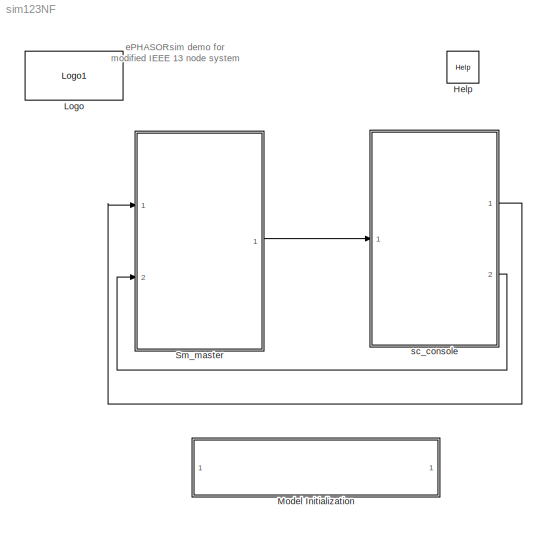
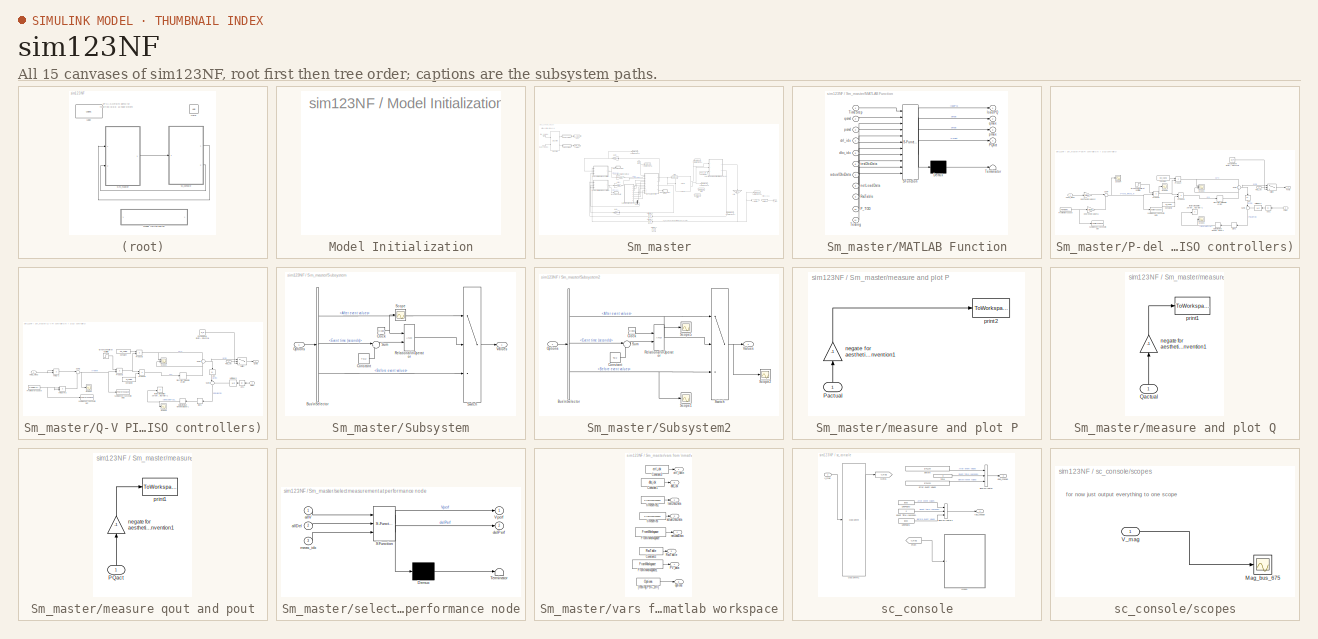
[diagram: thumbnail index - all 15 canvases of the model, root first then tree order]
MODEL sim123NF
KIND model
BLOCK [Reference] Help  REF=opal_lib/Help
  Ports = []
  SID = 1
  SourceBlock = opal_lib/Help
  SourceType = OpDoc
  docfile = ../help/ePH_IEEE13.html
BLOCK [Reference] Logo  REF=opal_lib/Logo1
  Ports = []
  SID = 2
  SourceBlock = opal_lib/Logo1
  SourceType = Opal-RT logo
  vide = []
BLOCK [SubSystem] Model Initialization
  CopyFcn = set_param(gcb,'LinkStatus','none')
  Ports = []
  RequestExecContextInheritance = off
  SID = 3
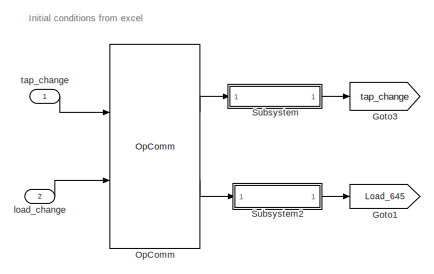
[diagram: Sm_master - part 1/5, top left region]
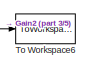
[diagram: Sm_master - part 2/5, top center region]
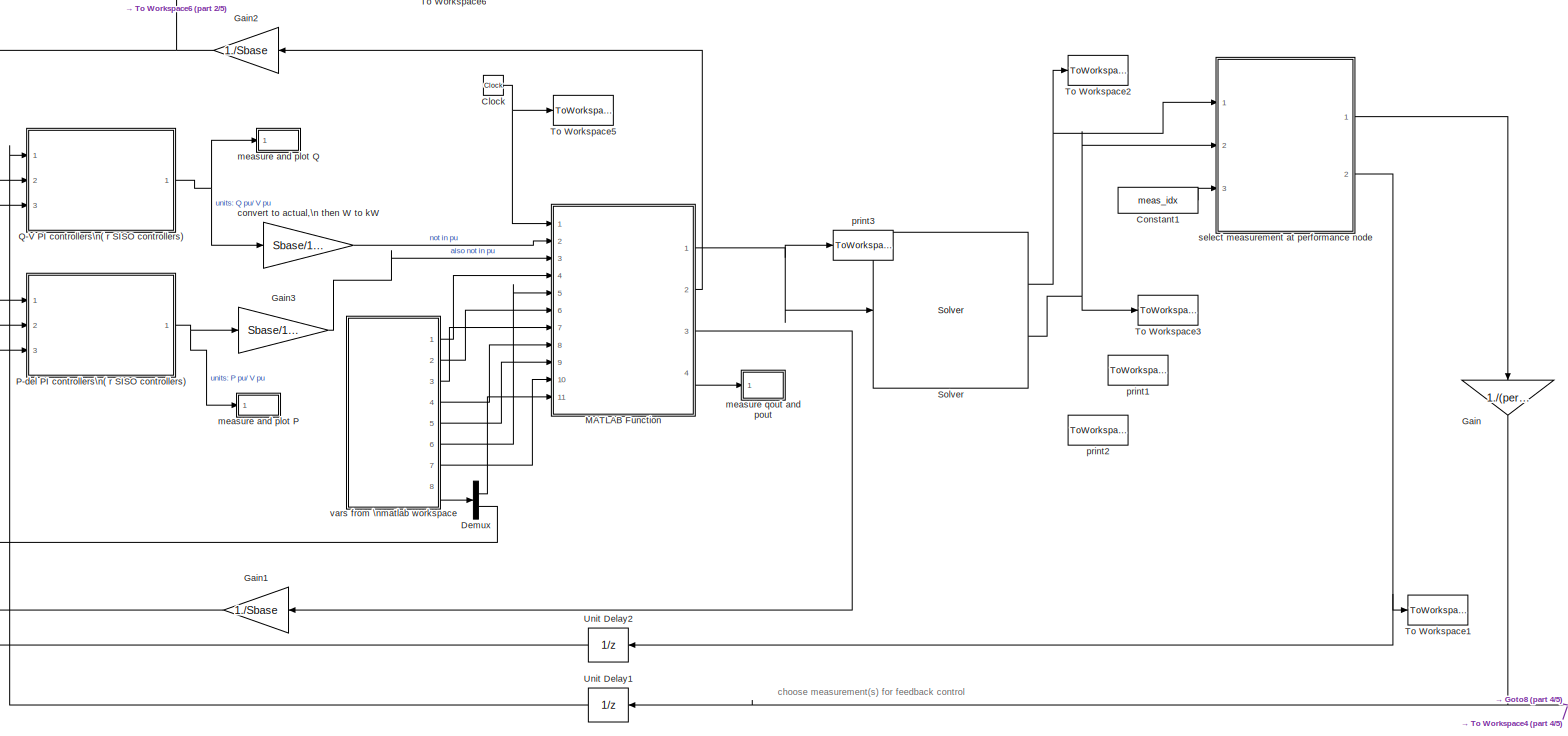
[diagram: Sm_master - part 3/5, central region]
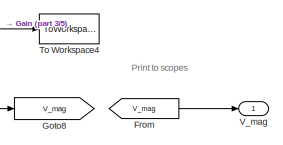
[diagram: Sm_master - part 4/5, middle right region]
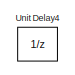
[diagram: Sm_master - part 5/5, bottom center region]
BLOCK [SubSystem] Sm_master
  Ports = [2, 1]
  RequestExecContextInheritance = off
  SID = 4
BLOCK [Clock] Sm_master/Clock
  SID = 7
BLOCK [Constant] Sm_master/Constant1
  SID = 8
  Value = meas_idx
BLOCK [Demux] Sm_master/Demux
  DisplayOption = bar
  Outputs = 2
  Ports = [1, 2]
  SID = 9
BLOCK [From] Sm_master/From
  GotoTag = V_mag
  SID = 10
BLOCK [Gain] Sm_master/Gain
  Gain = 1./(perf_Vbase)
  OutDataTypeStr = Inherit: Inherit via internal rule
  ParamDataTypeStr = Inherit: Inherit via internal rule
  SID = 11
  SaturateOnIntegerOverflow = off
BLOCK [Gain] Sm_master/Gain1
  Gain = 1./Sbase
  OutDataTypeStr = Inherit: Inherit via internal rule
  ParamDataTypeStr = Inherit: Inherit via internal rule
  SID = 12
  SaturateOnIntegerOverflow = off
BLOCK [Gain] Sm_master/Gain2
  Gain = 1./Sbase
  OutDataTypeStr = Inherit: Inherit via internal rule
  ParamDataTypeStr = Inherit: Inherit via internal rule
  SID = 13
  SaturateOnIntegerOverflow = off
BLOCK [Gain] Sm_master/Gain3
  Gain = Sbase/1000
  OutDataTypeStr = Inherit: Inherit via internal rule
  ParamDataTypeStr = Inherit: Inherit via internal rule
  SID = 14
  SaturateOnIntegerOverflow = off
BLOCK [Goto] Sm_master/Goto1
  GotoTag = Load_645
  SID = 16
BLOCK [Goto] Sm_master/Goto3
  GotoTag = tap_change
  SID = 17
BLOCK [Goto] Sm_master/Goto8
  GotoTag = V_mag
  SID = 18
BLOCK [SubSystem] Sm_master/MATLAB Function
  ErrorFcn = Stateflow.Translate.translate
  PermitHierarchicalResolution = ExplicitOnly
  Ports = [11, 4]
  RequestExecContextInheritance = off
  SFBlockType = MATLAB Function
  SID = 19
  TreatAsAtomicUnit = on
BLOCK [Demux] Sm_master/MATLAB Function/ Demux 
  Outputs = 1
  Ports = [1, 1]
  SID = 19::56
BLOCK [S-Function] Sm_master/MATLAB Function/ SFunction 
  EnableBusSupport = on
  FunctionName = sf_sfun
  PortCounts = [11 5]
  Ports = [11, 5]
  SFcnIsStateOwnerBlock = off
  SFunctionDeploymentMode = off
  SID = 19::55
  Tag = Stateflow S-Function sim123NF 2
BLOCK [Terminator] Sm_master/MATLAB Function/ Terminator 
  SID = 19::57
BLOCK [Outport] Sm_master/MATLAB Function/PQact
  IconDisplay = Port number
  Port = 4
  SID = 19::43
BLOCK [Inport] Sm_master/MATLAB Function/P_TOD
  IconDisplay = Port number
  Port = 10
  SID = 19::58
BLOCK [Inport] Sm_master/MATLAB Function/RscTable
  IconDisplay = Port number
  Port = 9
  SID = 19::33
BLOCK [Inport] Sm_master/MATLAB Function/Testing
  IconDisplay = Port number
  Port = 11
  SID = 19::59
BLOCK [Inport] Sm_master/MATLAB Function/TimeStep
  IconDisplay = Port number
  SID = 19::41
BLOCK [Inport] Sm_master/MATLAB Function/actualDbcData
  IconDisplay = Port number
  Port = 7
  SID = 19::54
BLOCK [Inport] Sm_master/MATLAB Function/ctrl_idx
  IconDisplay = Port number
  Port = 4
  SID = 19::28
BLOCK [Inport] Sm_master/MATLAB Function/dbc_idx
  IconDisplay = Port number
  Port = 5
  SID = 19::45
BLOCK [Outport] Sm_master/MATLAB Function/loadPQ
  IconDisplay = Port number
  SID = 19::5
BLOCK [Inport] Sm_master/MATLAB Function/netLoadData
  IconDisplay = Port number
  Port = 8
  SID = 19::31
BLOCK [Inport] Sm_master/MATLAB Function/pcmd
  IconDisplay = Port number
  Port = 3
  SID = 19::1
BLOCK [Outport] Sm_master/MATLAB Function/pmax
  IconDisplay = Port number
  Port = 3
  SID = 19::35
BLOCK [Inport] Sm_master/MATLAB Function/qcmd
  IconDisplay = Port number
  Port = 2
  SID = 19::19
BLOCK [Outport] Sm_master/MATLAB Function/qmax
  IconDisplay = Port number
  Port = 2
  SID = 19::36
BLOCK [Inport] Sm_master/MATLAB Function/testDbcData
  IconDisplay = Port number
  Port = 6
  SID = 19::46
BLOCK [Reference] Sm_master/OpComm  REF=rtlab/OpComm
  Interpolation = on
  Missed_Data = off
  Offset = off
  Ports = [2, 2]
  SID = 20
  Samples = off
  Sim_Time = off
  SourceBlock = rtlab/OpComm
  SourceProductName = RT-LAB
  SourceType = RT-LAB OpComm
  Synchronization = on
  Threshold = 1.0
  dynSigOut = off
  from_console = 1
  groupe_acq = 1
  nbport = 2
  st = 0
  subsys_rate = 0
  warning_done = off
  writeOpCommFile = off
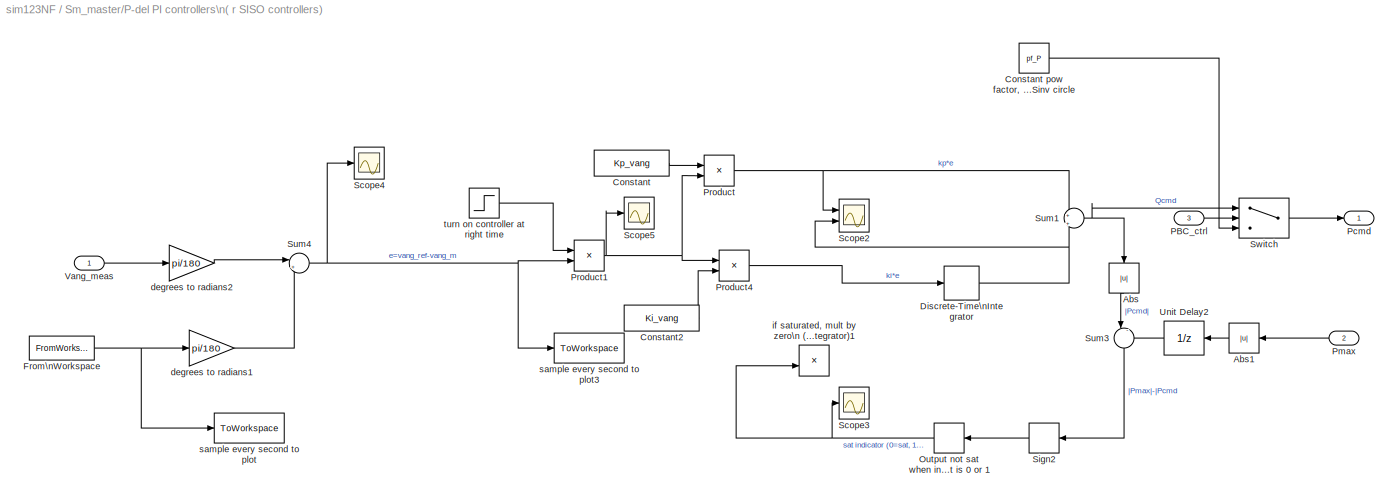
BLOCK [SubSystem] Sm_master/P-del PI controllers\n( r SISO controllers)
  Ports = [3, 1]
  RequestExecContextInheritance = off
  SID = 21
BLOCK [Abs] Sm_master/P-del PI controllers\n( r SISO controllers)/Abs
  SID = 25
  SaturateOnIntegerOverflow = off
BLOCK [Abs] Sm_master/P-del PI controllers\n( r SISO controllers)/Abs1
  SID = 26
  SaturateOnIntegerOverflow = off
BLOCK [Constant] Sm_master/P-del PI controllers\n( r SISO controllers)/Constant
  SID = 27
  Value = Kp_vang
BLOCK [Constant] Sm_master/P-del PI controllers\n( r SISO controllers)/Constant pow factor, on Sinv circle
  SID = 28
  Value = pf_P
BLOCK [Constant] Sm_master/P-del PI controllers\n( r SISO controllers)/Constant2
  SID = 29
  Value = Ki_vang
BLOCK [DiscreteIntegrator] Sm_master/P-del PI controllers\n( r SISO controllers)/Discrete-Time\nIntegrator
  ICPrevOutput = DiscIntNeverNeededParam
  ICPrevScaledInput = DiscIntNeverNeededParam
  InitialConditionSetting = Auto
  IntegratorMethod = Integration: Backward Euler
  Ports = [1, 1]
  SID = 30
  SampleTime = Ts
  gainval = 1
BLOCK [FromWorkspace] Sm_master/P-del PI controllers\n( r SISO controllers)/From\nWorkspace
  SID = 31
  SampleTime = 0
  VariableName = vang_ref
  ZeroCross = on
BLOCK [Relay] Sm_master/P-del PI controllers\n( r SISO controllers)/Output not sat when input is 0 or 1 
  OffSwitchValue = -0.5
  OnSwitchValue = -0.5
  SID = 32
BLOCK [Inport] Sm_master/P-del PI controllers\n( r SISO controllers)/PBC_ctrl
  IconDisplay = Port number
  Port = 3
  SID = 24
BLOCK [Outport] Sm_master/P-del PI controllers\n( r SISO controllers)/Pcmd
  IconDisplay = Port number
  SID = 51
BLOCK [Inport] Sm_master/P-del PI controllers\n( r SISO controllers)/Pmax
  IconDisplay = Port number
  Port = 2
  SID = 23
BLOCK [Product] Sm_master/P-del PI controllers\n( r SISO controllers)/Product
  InputSameDT = off
  OutDataTypeStr = Inherit: Inherit via internal rule
  Ports = [2, 1]
  RndMeth = Floor
  SID = 33
  SaturateOnIntegerOverflow = off
BLOCK [Product] Sm_master/P-del PI controllers\n( r SISO controllers)/Product1
  InputSameDT = off
  OutDataTypeStr = Inherit: Inherit via internal rule
  Ports = [2, 1]
  RndMeth = Floor
  SID = 34
  SaturateOnIntegerOverflow = off
BLOCK [Product] Sm_master/P-del PI controllers\n( r SISO controllers)/Product4
  InputSameDT = off
  OutDataTypeStr = Inherit: Inherit via internal rule
  Ports = [2, 1]
  RndMeth = Floor
  SID = 35
  SaturateOnIntegerOverflow = off
BLOCK [Scope] Sm_master/P-del PI controllers\n( r SISO controllers)/Scope2
  Floating = off
  NumInputPorts = 2
  Ports = [2]
  SID = 36
  ScopeSpecificationString = C++SS(StrPVP('Location','[168, 197, 1604, 996]'),StrPVP('Open','off'),MxPVP('AxesTitles',53,'struct(''axes1'',''%<SignalLabel>'',''axes2'',''%<SignalLabel>'')'),MxPVP('ScopeGraphics',56,'struct(''FigureColor'',''[0.156862745098039 0.156862745098039 0.156862745098039]'',''AxesColor'',''[0 0 0]'',''AxesTickColor'',''[0.686274509803922 0.686274509803922 0.686274509803922]'',''LineColors'',''[1 1 0;1 ...<+382ch>
BLOCK [Scope] Sm_master/P-del PI controllers\n( r SISO controllers)/Scope3
  Floating = off
  NumInputPorts = 1
  Ports = [1]
  SID = 37
  ScopeSpecificationString = C++SS(StrPVP('Location','[11, 180, 1919, 1069]'),StrPVP('Open','off'),MxPVP('AxesTitles',53,'struct(''axes1'',''%<SignalLabel>'')'),MxPVP('ScopeGraphics',56,'struct(''FigureColor'',''[0.156862745098039 0.156862745098039 0.156862745098039]'',''AxesColor'',''[0 0 0]'',''AxesTickColor'',''[0.686274509803922 0.686274509803922 0.686274509803922]'',''LineColors'',''[1 1 0;1 0 1;0 1 1;1 0 0;0 1 0;0 0 1]'...<+374ch>
BLOCK [Scope] Sm_master/P-del PI controllers\n( r SISO controllers)/Scope4
  Floating = off
  NumInputPorts = 1
  Ports = [1]
  SID = 38
  ScopeSpecificationString = Simulink.scopes.TimeScopeBlockCfg('CurrentConfiguration', extmgr.ConfigurationSet(extmgr.Configuration('Core','General UI',true,'FigureColor',[0.156862745098039 0.156862745098039 0.156862745098039]),extmgr.Configuration('Core','Source UI',true),extmgr.Configuration('Sources','WiredSimulink',true,'DataLoggingSaveFormat','StructureWithTime','DataLoggingDecimation','1','DataLoggingDecimateData',true)...<+3012ch>
BLOCK [Scope] Sm_master/P-del PI controllers\n( r SISO controllers)/Scope5
  Floating = off
  NumInputPorts = 1
  Ports = [1]
  SID = 39
  ScopeSpecificationString = C++SS(StrPVP('Location','[301, 600, 1354, 1301]'),StrPVP('Open','off'),MxPVP('AxesTitles',53,'struct(''axes1'',''%<SignalLabel>'')'),MxPVP('ScopeGraphics',56,'struct(''FigureColor'',''[0.156862745098039 0.156862745098039 0.156862745098039]'',''AxesColor'',''[0 0 0]'',''AxesTickColor'',''[0.686274509803922 0.686274509803922 0.686274509803922]'',''LineColors'',''[1 1 0;1 0 1;0 1 1;1 0 0;0 1 0;0 0 1]...<+401ch>
BLOCK [Signum] Sm_master/P-del PI controllers\n( r SISO controllers)/Sign2
  SID = 40
BLOCK [Sum] Sm_master/P-del PI controllers\n( r SISO controllers)/Sum1
  IconShape = round
  InputSameDT = off
  Inputs = +|+
  OutDataTypeStr = Inherit: Inherit via internal rule
  Ports = [2, 1]
  SID = 41
  SaturateOnIntegerOverflow = off
BLOCK [Sum] Sm_master/P-del PI controllers\n( r SISO controllers)/Sum3
  IconShape = round
  InputSameDT = off
  Inputs = |-+
  OutDataTypeStr = Inherit: Inherit via internal rule
  Ports = [2, 1]
  SID = 42
  SaturateOnIntegerOverflow = off
BLOCK [Sum] Sm_master/P-del PI controllers\n( r SISO controllers)/Sum4
  IconShape = round
  InputSameDT = off
  Inputs = |+-
  OutDataTypeStr = Inherit: Inherit via internal rule
  Ports = [2, 1]
  SID = 43
  SaturateOnIntegerOverflow = off
BLOCK [Switch] Sm_master/P-del PI controllers\n( r SISO controllers)/Switch
  Criteria = u2 > Threshold
  InputSameDT = off
  SID = 44
  SaturateOnIntegerOverflow = off
BLOCK [UnitDelay] Sm_master/P-del PI controllers\n( r SISO controllers)/Unit Delay2
  HasFrameUpgradeWarning = on
  InitialCondition = Sinv*ones(size(Kp_vang))
  SID = 45
  SampleTime = Ts
BLOCK [Inport] Sm_master/P-del PI controllers\n( r SISO controllers)/Vang_meas
  IconDisplay = Port number
  SID = 22
BLOCK [Gain] Sm_master/P-del PI controllers\n( r SISO controllers)/degrees to radians1
  Gain = pi/180
  OutDataTypeStr = Inherit: Inherit via internal rule
  ParamDataTypeStr = Inherit: Inherit via internal rule
  SID = 178
  SaturateOnIntegerOverflow = off
BLOCK [Gain] Sm_master/P-del PI controllers\n( r SISO controllers)/degrees to radians2
  Gain = pi/180
  OutDataTypeStr = Inherit: Inherit via internal rule
  ParamDataTypeStr = Inherit: Inherit via internal rule
  SID = 179
  SaturateOnIntegerOverflow = off
BLOCK [Product] Sm_master/P-del PI controllers\n( r SISO controllers)/if saturated, mult by zero\n (zero out integrator)1
  InputSameDT = off
  OutDataTypeStr = Inherit: Inherit via internal rule
  Ports = [2, 1]
  RndMeth = Floor
  SID = 172
  SaturateOnIntegerOverflow = off
BLOCK [ToWorkspace] Sm_master/P-del PI controllers\n( r SISO controllers)/sample every second to plot
  MaxDataPoints = inf
  Ports = [1]
  SID = 48
  SampleTime = Ts
  VariableName = vang_ref_sig
BLOCK [ToWorkspace] Sm_master/P-del PI controllers\n( r SISO controllers)/sample every second to plot3
  MaxDataPoints = inf
  Ports = [1]
  SID = 49
  SampleTime = Ts
  VariableName = vang_err
BLOCK [Step] Sm_master/P-del PI controllers\n( r SISO controllers)/turn on controller at right time
  SID = 50
  SampleTime = 0
  Time = Vang_ctrlStart
BLOCK [SubSystem] Sm_master/Q-V PI controllers\n( r SISO controllers)
  Ports = [3, 1]
  RequestExecContextInheritance = off
  SID = 52
BLOCK [Abs] Sm_master/Q-V PI controllers\n( r SISO controllers)/Abs
  SID = 56
  SaturateOnIntegerOverflow = off
BLOCK [Abs] Sm_master/Q-V PI controllers\n( r SISO controllers)/Abs1
  SID = 57
  SaturateOnIntegerOverflow = off
BLOCK [Constant] Sm_master/Q-V PI controllers\n( r SISO controllers)/Constant
  SID = 58
  Value = Kp_vmag
BLOCK [Constant] Sm_master/Q-V PI controllers\n( r SISO controllers)/Constant pow factor, on Sinv circle
  SID = 59
  Value = pf_Q
BLOCK [Constant] Sm_master/Q-V PI controllers\n( r SISO controllers)/Constant2
  SID = 60
  Value = Ki_vmag
BLOCK [DiscreteIntegrator] Sm_master/Q-V PI controllers\n( r SISO controllers)/Discrete-Time\nIntegrator
  ICPrevOutput = DiscIntNeverNeededParam
  ICPrevScaledInput = DiscIntNeverNeededParam
  InitialConditionSetting = Auto
  IntegratorMethod = Integration: Backward Euler
  Ports = [1, 1]
  SID = 61
  SampleTime = Ts
  gainval = 1
BLOCK [FromWorkspace] Sm_master/Q-V PI controllers\n( r SISO controllers)/From\nWorkspace
  SID = 62
  SampleTime = 0
  VariableName = vmag_ref
  ZeroCross = on
BLOCK [Relay] Sm_master/Q-V PI controllers\n( r SISO controllers)/Output not sat when input is 0 or 1
  OffSwitchValue = -0.5
  OnSwitchValue = -0.5
  SID = 63
BLOCK [Inport] Sm_master/Q-V PI controllers\n( r SISO controllers)/PBC_ctrl
  IconDisplay = Port number
  Port = 3
  SID = 55
BLOCK [Product] Sm_master/Q-V PI controllers\n( r SISO controllers)/Product1
  InputSameDT = off
  OutDataTypeStr = Inherit: Inherit via internal rule
  Ports = [2, 1]
  RndMeth = Floor
  SID = 64
  SaturateOnIntegerOverflow = off
BLOCK [Product] Sm_master/Q-V PI controllers\n( r SISO controllers)/Product3
  InputSameDT = off
  OutDataTypeStr = Inherit: Inherit via internal rule
  Ports = [2, 1]
  RndMeth = Floor
  SID = 65
  SaturateOnIntegerOverflow = off
BLOCK [Product] Sm_master/Q-V PI controllers\n( r SISO controllers)/Product4
  InputSameDT = off
  OutDataTypeStr = Inherit: Inherit via internal rule
  Ports = [2, 1]
  RndMeth = Floor
  SID = 66
  SaturateOnIntegerOverflow = off
BLOCK [Outport] Sm_master/Q-V PI controllers\n( r SISO controllers)/Qcmd
  IconDisplay = Port number
  SID = 81
BLOCK [Inport] Sm_master/Q-V PI controllers\n( r SISO controllers)/Qmax
  IconDisplay = Port number
  Port = 2
  SID = 54
BLOCK [Scope] Sm_master/Q-V PI controllers\n( r SISO controllers)/Scope2
  Floating = off
  NumInputPorts = 2
  Ports = [2]
  SID = 67
  ScopeSpecificationString = C++SS(StrPVP('Location','[-1, 204, 1916, 1230]'),StrPVP('Open','off'),MxPVP('AxesTitles',53,'struct(''axes1'',''%<SignalLabel>'',''axes2'',''%<SignalLabel>'')'),MxPVP('ScopeGraphics',56,'struct(''FigureColor'',''[0.156862745098039 0.156862745098039 0.156862745098039]'',''AxesColor'',''[0 0 0]'',''AxesTickColor'',''[0.686274509803922 0.686274509803922 0.686274509803922]'',''LineColors'',''[1 1 0;1 ...<+409ch>
BLOCK [Scope] Sm_master/Q-V PI controllers\n( r SISO controllers)/Scope3
  Floating = off
  NumInputPorts = 1
  Ports = [1]
  SID = 68
  ScopeSpecificationString = Simulink.scopes.TimeScopeBlockCfg('CurrentConfiguration', extmgr.ConfigurationSet(extmgr.Configuration('Core','General UI',true,'FigureColor',[0.156862745098039 0.156862745098039 0.156862745098039]),extmgr.Configuration('Core','Source UI',true),extmgr.Configuration('Sources','WiredSimulink',true,'DataLoggingVariableName','ScopeData9','DataLoggingSaveFormat','StructureWithTime','DataLoggingDecimati...<+3238ch>
BLOCK [Scope] Sm_master/Q-V PI controllers\n( r SISO controllers)/Scope4
  Floating = off
  NumInputPorts = 1
  Ports = [1]
  SID = 69
  ScopeSpecificationString = Simulink.scopes.TimeScopeBlockCfg('CurrentConfiguration', extmgr.ConfigurationSet(extmgr.Configuration('Core','General UI',true,'FigureColor',[0.156862745098039 0.156862745098039 0.156862745098039]),extmgr.Configuration('Core','Source UI',true),extmgr.Configuration('Sources','WiredSimulink',true,'DataLoggingVariableName','ScopeData4','DataLoggingSaveFormat','StructureWithTime','DataLoggingDecimati...<+2781ch>
BLOCK [Signum] Sm_master/Q-V PI controllers\n( r SISO controllers)/Sign1
  SID = 70
BLOCK [Sum] Sm_master/Q-V PI controllers\n( r SISO controllers)/Sum1
  IconShape = round
  InputSameDT = off
  Inputs = +|+
  OutDataTypeStr = Inherit: Inherit via internal rule
  Ports = [2, 1]
  SID = 71
  SaturateOnIntegerOverflow = off
BLOCK [Sum] Sm_master/Q-V PI controllers\n( r SISO controllers)/Sum2
  IconShape = round
  InputSameDT = off
  Inputs = |+-
  OutDataTypeStr = Inherit: Inherit via internal rule
  Ports = [2, 1]
  SID = 72
  SaturateOnIntegerOverflow = off
BLOCK [Sum] Sm_master/Q-V PI controllers\n( r SISO controllers)/Sum3
  IconShape = round
  InputSameDT = off
  Inputs = |-+
  OutDataTypeStr = Inherit: Inherit via internal rule
  Ports = [2, 1]
  SID = 73
  SaturateOnIntegerOverflow = off
BLOCK [Switch] Sm_master/Q-V PI controllers\n( r SISO controllers)/Switch
  Criteria = u2 > Threshold
  InputSameDT = off
  SID = 74
  SaturateOnIntegerOverflow = off
BLOCK [UnitDelay] Sm_master/Q-V PI controllers\n( r SISO controllers)/Unit Delay2
  HasFrameUpgradeWarning = on
  InitialCondition = Sinv*ones(size(Kp_vmag))
  SID = 75
  SampleTime = Ts
BLOCK [Inport] Sm_master/Q-V PI controllers\n( r SISO controllers)/Vmag_meas
  IconDisplay = Port number
  SID = 53
BLOCK [Product] Sm_master/Q-V PI controllers\n( r SISO controllers)/if saturated, mult by zero\n (zero out integrator)1
  InputSameDT = off
  OutDataTypeStr = Inherit: Inherit via internal rule
  Ports = [2, 1]
  RndMeth = Floor
  SID = 173
  SaturateOnIntegerOverflow = off
BLOCK [ToWorkspace] Sm_master/Q-V PI controllers\n( r SISO controllers)/sample every second to plot
  MaxDataPoints = inf
  Ports = [1]
  SID = 78
  SampleTime = Ts
  VariableName = vmag_ref_sig
BLOCK [ToWorkspace] Sm_master/Q-V PI controllers\n( r SISO controllers)/sample every second to plot3
  MaxDataPoints = inf
  Ports = [1]
  SID = 79
  SampleTime = Ts
  VariableName = vmag_err
BLOCK [Step] Sm_master/Q-V PI controllers\n( r SISO controllers)/turn on controller at right time
  SID = 80
  SampleTime = 0
  Time = Vmag_ctrlStart
BLOCK [Product] Sm_master/Q-V PI controllers\n( r SISO controllers)/vmag ref^2
  InputSameDT = off
  OutDataTypeStr = Inherit: Inherit via internal rule
  Ports = [2, 1]
  RndMeth = Floor
  SID = 177
  SaturateOnIntegerOverflow = off
BLOCK [Product] Sm_master/Q-V PI controllers\n( r SISO controllers)/vmag^2
  InputSameDT = off
  OutDataTypeStr = Inherit: Inherit via internal rule
  Ports = [2, 1]
  RndMeth = Floor
  SID = 176
  SaturateOnIntegerOverflow = off
BLOCK [Reference] Sm_master/Solver  REF=rtlab_phasor/Solver
  MultiThreadCoSim = auto
  Ports = [1, 2]
  SID = 82
  SourceBlock = rtlab_phasor/Solver
  SourceType = ePHASORSIM Solver
  builtin = on
  capidir = 'CAPI'
  capiprefix = capicomp_
  cyme = 'typical.sxst'
  cyme_pf = ''
  cyme_unbalanced = on
  dt = Ts
  dyr = '4992b.dyr'
  epname = System1
  exporty = off
  extension = Excel
  fmu2builtin = off
  fmudir = ''
  fmuprefix = fmucomp_
  lazy_netlist = off
  logging = off
  np = 1
  optim_threads = off
  perflog_on = off
  pf_export = on
  pf_flat_start = off
  pf_init_method = Smart Start
  pf_max_it = 100
  pf_smart_start = on
  pf_then_dyn = on
  pf_tol_v = 0.00000001
  pfrequest = off
  powerfactory = 'network.dgs'
  raw = '4992b.raw'
  script_activate_postinit = off
  script_postinit_name = ''
  sim_mode = Power-flow and dynamic simulation
  xls = '004_GB_IEEE123_OPAL.xlsx'
BLOCK [SubSystem] Sm_master/Subsystem
  Ports = [1, 1]
  RequestExecContextInheritance = off
  SID = 83
BLOCK [BusSelector] Sm_master/Subsystem/Bus\nSelector
  OutputAsBus = off
  OutputSignals = After event values,Event time (seconds),Before event values
  Ports = [1, 3]
  SID = 85
BLOCK [Clock] Sm_master/Subsystem/Clock
  Decimation = 1
  SID = 86
BLOCK [Constant] Sm_master/Subsystem/Constant
  SID = 87
  Value = Ts/2
BLOCK [Inport] Sm_master/Subsystem/Options
  IconDisplay = Port number
  SID = 84
BLOCK [RelationalOperator] Sm_master/Subsystem/Relational\nOperator
  InputSameDT = off
  OutDataTypeStr = boolean
  Ports = [2, 1]
  SID = 88
BLOCK [Scope] Sm_master/Subsystem/Scope
  Floating = off
  NumInputPorts = 1
  Ports = [1]
  SID = 89
  ScopeSpecificationString = C++SS(StrPVP('Location','[1042, 319, 2377, 1200]'),StrPVP('Open','off'),MxPVP('AxesTitles',53,'struct(''axes1'',''%<SignalLabel>'')'),MxPVP('ScopeGraphics',56,'struct(''FigureColor'',''[0.5 0.5 0.5]'',''AxesColor'',''[0 0 0]'',''AxesTickColor'',''[1 1 1]'',''LineColors'',''[1 1 0;1 0 1;0 1 1;1 0 0;0 1 0;0 0 1]'',''LineStyles'',''-|-|-|-|-|-'',''LineWidths'',''[0.5 0.5 0.5 0.5 0.5 0.5]'',''MarkerSt...<+199ch>
BLOCK [Sum] Sm_master/Subsystem/Sum
  IconShape = round
  InputSameDT = off
  Inputs = |+-
  OutDataTypeStr = Inherit: Inherit via internal rule
  Ports = [2, 1]
  SID = 90
  SaturateOnIntegerOverflow = off
BLOCK [Switch] Sm_master/Subsystem/Switch
  InputSameDT = off
  SID = 91
  SaturateOnIntegerOverflow = off
  Threshold = 0.5
BLOCK [Outport] Sm_master/Subsystem/Values
  IconDisplay = Port number
  SID = 92
BLOCK [SubSystem] Sm_master/Subsystem2
  Ports = [1, 1]
  RequestExecContextInheritance = off
  SID = 93
BLOCK [BusSelector] Sm_master/Subsystem2/Bus\nSelector
  OutputAsBus = off
  OutputSignals = After event values,Event time (seconds),Before event values
  Ports = [1, 3]
  SID = 95
BLOCK [Clock] Sm_master/Subsystem2/Clock
  Decimation = 1
  SID = 96
BLOCK [Constant] Sm_master/Subsystem2/Constant
  SID = 97
  Value = Ts/2
BLOCK [Inport] Sm_master/Subsystem2/Options
  IconDisplay = Port number
  SID = 94
BLOCK [RelationalOperator] Sm_master/Subsystem2/Relational\nOperator
  InputSameDT = off
  OutDataTypeStr = boolean
  Ports = [2, 1]
  SID = 98
BLOCK [Scope] Sm_master/Subsystem2/Scope1
  Floating = off
  NumInputPorts = 1
  Ports = [1]
  SID = 99
  ScopeSpecificationString = C++SS(StrPVP('Location','[11, 60, 1931, 1051]'),StrPVP('Open','off'),StrPVP('ZoomMode','yonly'),MxPVP('AxesTitles',53,'struct(''axes1'',''%<SignalLabel>'')'),MxPVP('ScopeGraphics',56,'struct(''FigureColor'',''[0.5 0.5 0.5]'',''AxesColor'',''[0 0 0]'',''AxesTickColor'',''[1 1 1]'',''LineColors'',''[1 1 0;1 0 1;0 1 1;1 0 0;0 1 0;0 0 1]'',''LineStyles'',''-|-|-|-|-|-'',''LineWidths'',''[0.5 0.5 0.5 0...<+272ch>
BLOCK [Scope] Sm_master/Subsystem2/Scope2
  Floating = off
  NumInputPorts = 1
  Ports = [1]
  SID = 100
  ScopeSpecificationString = C++SS(StrPVP('Location','[631, 60, 2551, 1091]'),StrPVP('Open','off'),StrPVP('ZoomMode','yonly'),MxPVP('AxesTitles',53,'struct(''axes1'',''%<SignalLabel>'')'),MxPVP('ScopeGraphics',56,'struct(''FigureColor'',''[0.5 0.5 0.5]'',''AxesColor'',''[0 0 0]'',''AxesTickColor'',''[1 1 1]'',''LineColors'',''[1 1 0;1 0 1;0 1 1;1 0 0;0 1 0;0 0 1]'',''LineStyles'',''-|-|-|-|-|-'',''LineWidths'',''[0.5 0.5 0.5 ...<+273ch>
BLOCK [Scope] Sm_master/Subsystem2/Scope5
  Floating = off
  NumInputPorts = 1
  Ports = [1]
  SID = 101
  ScopeSpecificationString = C++SS(StrPVP('Location','[11, 60, 1931, 1051]'),StrPVP('Open','off'),StrPVP('ZoomMode','yonly'),MxPVP('AxesTitles',53,'struct(''axes1'',''%<SignalLabel>'')'),MxPVP('ScopeGraphics',56,'struct(''FigureColor'',''[0.5 0.5 0.5]'',''AxesColor'',''[0 0 0]'',''AxesTickColor'',''[1 1 1]'',''LineColors'',''[1 1 0;1 0 1;0 1 1;1 0 0;0 1 0;0 0 1]'',''LineStyles'',''-|-|-|-|-|-'',''LineWidths'',''[0.5 0.5 0.5 0...<+272ch>
BLOCK [Sum] Sm_master/Subsystem2/Sum
  IconShape = round
  InputSameDT = off
  Inputs = |+-
  OutDataTypeStr = Inherit: Inherit via internal rule
  Ports = [2, 1]
  SID = 102
  SaturateOnIntegerOverflow = off
BLOCK [Switch] Sm_master/Subsystem2/Switch
  InputSameDT = off
  SID = 103
  SaturateOnIntegerOverflow = off
  Threshold = 0.5
BLOCK [Outport] Sm_master/Subsystem2/Values
  IconDisplay = Port number
  SID = 104
BLOCK [ToWorkspace] Sm_master/To Workspace1
  MaxDataPoints = inf
  Ports = [1]
  SID = 105
  SampleTime = Ts
  Save2DSignal = 2-D array (concatenate along first dimension)
  VariableName = vang_new
BLOCK [ToWorkspace] Sm_master/To Workspace2
  MaxDataPoints = inf
  Ports = [1]
  SID = 106
  SampleTime = Ts
  Save2DSignal = 2-D array (concatenate along first dimension)
  VariableName = vmag_all
BLOCK [ToWorkspace] Sm_master/To Workspace3
  MaxDataPoints = inf
  Ports = [1]
  SID = 107
  SampleTime = Ts
  Save2DSignal = 2-D array (concatenate along first dimension)
  VariableName = vang_all
BLOCK [ToWorkspace] Sm_master/To Workspace4
  MaxDataPoints = inf
  Ports = [1]
  SID = 108
  SampleTime = Ts
  Save2DSignal = 2-D array (concatenate along first dimension)
  VariableName = vmag_new
BLOCK [ToWorkspace] Sm_master/To Workspace5
  MaxDataPoints = inf
  Ports = [1]
  SID = 109
  SampleTime = -1
  Save2DSignal = 2-D array (concatenate along first dimension)
  VariableName = t
BLOCK [ToWorkspace] Sm_master/To Workspace6
  FixptAsFi = on
  MaxDataPoints = inf
  Ports = [1]
  SID = 110
  SampleTime = Ts
  VariableName = Qmax
BLOCK [UnitDelay] Sm_master/Unit Delay1
  HasFrameUpgradeWarning = on
  InitialCondition = vmag_init_actual
  SID = 111
  SampleTime = Ts
BLOCK [UnitDelay] Sm_master/Unit Delay2
  HasFrameUpgradeWarning = on
  InitialCondition = vang_init_actual
  SID = 112
  SampleTime = Ts
BLOCK [UnitDelay] Sm_master/Unit Delay4
  HasFrameUpgradeWarning = on
  InitialCondition = vmag_init_actual
  SID = 113
  SampleTime = Ts
BLOCK [Outport] Sm_master/V_mag
  IconDisplay = Port number
  SID = 146
BLOCK [Gain] Sm_master/convert to actual,\n then W to kW
  Gain = Sbase/1000
  OutDataTypeStr = Inherit: Inherit via internal rule
  ParamDataTypeStr = Inherit: Inherit via internal rule
  SID = 15
  SaturateOnIntegerOverflow = off
BLOCK [Inport] Sm_master/load_change
  IconDisplay = Port number
  Port = 2
  SID = 6
BLOCK [SubSystem] Sm_master/measure and plot P
  Ports = [1]
  RequestExecContextInheritance = off
  SID = 114
BLOCK [Inport] Sm_master/measure and plot P/Pactual
  IconDisplay = Port number
  SID = 115
BLOCK [Gain] Sm_master/measure and plot P/negate for aesthetic\n sign convention1
  Gain = -1
  OutDataTypeStr = Inherit: Inherit via internal rule
  ParamDataTypeStr = Inherit: Inherit via internal rule
  SID = 116
  SaturateOnIntegerOverflow = off
BLOCK [ToWorkspace] Sm_master/measure and plot P/print2
  MaxDataPoints = inf
  Ports = [1]
  SID = 117
  SampleTime = Ts
  Save2DSignal = 2-D array (concatenate along first dimension)
  VariableName = pnew
BLOCK [SubSystem] Sm_master/measure and plot Q
  Ports = [1]
  RequestExecContextInheritance = off
  SID = 118
BLOCK [Inport] Sm_master/measure and plot Q/Qactual
  IconDisplay = Port number
  SID = 119
BLOCK [Gain] Sm_master/measure and plot Q/negate for aesthetic\n sign convention1
  Gain = -1
  OutDataTypeStr = Inherit: Inherit via internal rule
  ParamDataTypeStr = Inherit: Inherit via internal rule
  SID = 120
  SaturateOnIntegerOverflow = off
BLOCK [ToWorkspace] Sm_master/measure and plot Q/print1
  MaxDataPoints = inf
  Ports = [1]
  SID = 121
  SampleTime = Ts
  Save2DSignal = 2-D array (concatenate along first dimension)
  VariableName = qnew
BLOCK [SubSystem] Sm_master/measure qout and pout
  Ports = [1]
  RequestExecContextInheritance = off
  SID = 122
BLOCK [Inport] Sm_master/measure qout and pout/PQact
  IconDisplay = Port number
  SID = 123
BLOCK [Gain] Sm_master/measure qout and pout/negate for aesthetic\n sign convention1
  Gain = -1
  OutDataTypeStr = Inherit: Inherit via internal rule
  ParamDataTypeStr = Inherit: Inherit via internal rule
  SID = 124
  SaturateOnIntegerOverflow = off
BLOCK [ToWorkspace] Sm_master/measure qout and pout/print1
  MaxDataPoints = inf
  Ports = [1]
  SID = 125
  SampleTime = Ts
  Save2DSignal = 2-D array (concatenate along first dimension)
  VariableName = PQact
BLOCK [ToWorkspace] Sm_master/print1
  MaxDataPoints = inf
  Ports = [1]
  SID = 126
  SampleTime = Ts
  Save2DSignal = 2-D array (concatenate along first dimension)
  VariableName = PCC_flowPQ
BLOCK [ToWorkspace] Sm_master/print2
  MaxDataPoints = inf
  Ports = [1]
  SID = 127
  SampleTime = Ts
  Save2DSignal = 2-D array (concatenate along first dimension)
  VariableName = act_lineCurrs
BLOCK [ToWorkspace] Sm_master/print3
  MaxDataPoints = inf
  Ports = [1]
  SID = 175
  SampleTime = Ts
  Save2DSignal = 2-D array (concatenate along first dimension)
  VariableName = netload_out
BLOCK [SubSystem] Sm_master/select measurement at performance node
  ErrorFcn = Stateflow.Translate.translate
  PermitHierarchicalResolution = ExplicitOnly
  Ports = [3, 2]
  RequestExecContextInheritance = off
  SFBlockType = MATLAB Function
  SID = 128
  TreatAsAtomicUnit = on
BLOCK [Demux] Sm_master/select measurement at performance node/ Demux 
  Outputs = 1
  Ports = [1, 1]
  SID = 128::25
BLOCK [S-Function] Sm_master/select measurement at performance node/ SFunction 
  EnableBusSupport = on
  FunctionName = sf_sfun
  PortCounts = [3 3]
  Ports = [3, 3]
  SFcnIsStateOwnerBlock = off
  SFunctionDeploymentMode = off
  SID = 128::24
  Tag = Stateflow S-Function sim123NF 1
BLOCK [Terminator] Sm_master/select measurement at performance node/ Terminator 
  SID = 128::26
BLOCK [Outport] Sm_master/select measurement at performance node/Vperf
  IconDisplay = Port number
  SID = 128::5
BLOCK [Inport] Sm_master/select measurement at performance node/allDel
  IconDisplay = Port number
  Port = 2
  SID = 128::20
BLOCK [Inport] Sm_master/select measurement at performance node/allV
  IconDisplay = Port number
  SID = 128::19
BLOCK [Outport] Sm_master/select measurement at performance node/delPerf
  IconDisplay = Port number
  Port = 2
  SID = 128::21
BLOCK [Inport] Sm_master/select measurement at performance node/meas_idx
  IconDisplay = Port number
  Port = 3
  SID = 128::23
BLOCK [Inport] Sm_master/tap_change
  IconDisplay = Port number
  SID = 5
BLOCK [SubSystem] Sm_master/vars from \nmatlab workspace
  Ports = [0, 8]
  RequestExecContextInheritance = off
  SID = 129
BLOCK [Constant] Sm_master/vars from \nmatlab workspace/Constant1
  SID = 130
  Value = dbc_idx
BLOCK [Constant] Sm_master/vars from \nmatlab workspace/Constant2
  SID = 131
  Value = RscTable
BLOCK [Constant] Sm_master/vars from \nmatlab workspace/Constant3
  SID = 132
  Value = ctrl_idx
BLOCK [FromWorkspace] Sm_master/vars from \nmatlab workspace/From\nWorkspace
  Interpolate = off
  OutDataTypeStr = double
  OutputAfterFinalValue = Setting to zero
  SID = 133
  SampleTime = Ts
  VariableName = netLoadData_snippet
  ZeroCross = on
BLOCK [FromWorkspace] Sm_master/vars from \nmatlab workspace/From\nWorkspace1
  Interpolate = off
  OutDataTypeStr = double
  OutputAfterFinalValue = Holding final value
  SID = 134
  SampleTime = Ts
  VariableName = P_TOD
  ZeroCross = on
BLOCK [Outport] Sm_master/vars from \nmatlab workspace/PV_data
  IconDisplay = Port number
  Port = 7
  SID = 144
BLOCK [Outport] Sm_master/vars from \nmatlab workspace/RscTablle
  IconDisplay = Port number
  Port = 5
  SID = 142
BLOCK [Constant] Sm_master/vars from \nmatlab workspace/[testing PBC_ctrl]
  SID = 135
  Value = Options
BLOCK [Outport] Sm_master/vars from \nmatlab workspace/actualDbcData
  IconDisplay = Port number
  Port = 3
  SID = 140
BLOCK [Outport] Sm_master/vars from \nmatlab workspace/ctrl_idx\n
  IconDisplay = Port number
  SID = 138
BLOCK [Outport] Sm_master/vars from \nmatlab workspace/dbc_idx
  IconDisplay = Port number
  Port = 6
  SID = 143
BLOCK [Outport] Sm_master/vars from \nmatlab workspace/netLoadData
  IconDisplay = Port number
  Port = 4
  SID = 141
BLOCK [Outport] Sm_master/vars from \nmatlab workspace/options
  IconDisplay = Port number
  Port = 8
  SID = 145
BLOCK [Outport] Sm_master/vars from \nmatlab workspace/testDbcData
  IconDisplay = Port number
  Port = 2
  SID = 139
BLOCK [FromWorkspace] Sm_master/vars from \nmatlab workspace/timeseries
  Interpolate = off
  OutputAfterFinalValue = Holding final value
  SID = 136
  SampleTime = Ts
  VariableName = actualDbcData
  ZeroCross = on
BLOCK [FromWorkspace] Sm_master/vars from \nmatlab workspace/timeseries1
  Interpolate = off
  OutDataTypeStr = double
  OutputAfterFinalValue = Holding final value
  SID = 137
  SampleTime = Ts
  VariableName = testDbcData
  ZeroCross = on
BLOCK [SubSystem] sc_console
  Ports = [1, 2]
  RequestExecContextInheritance = off
  SID = 151
BLOCK [BusCreator] sc_console/Bus\nCreator
  DisplayOption = bar
  InheritFromInputs = on
  Inputs = 3
  Ports = [3, 1]
  SID = 153
BLOCK [BusCreator] sc_console/Bus\nCreator1
  DisplayOption = bar
  InheritFromInputs = on
  Inputs = 3
  Ports = [3, 1]
  SID = 154
BLOCK [Constant] sc_console/Event Time (seconds)
  SID = 155
  Value = 0
BLOCK [From] sc_console/From
  GotoTag = V_mag
  SID = 156
BLOCK [Goto] sc_console/Goto1
  GotoTag = V_mag
  SID = 157
BLOCK [Constant] sc_console/LineFault0
  SID = 158
  Value = [0 0 0]
BLOCK [Constant] sc_console/LineFault1
  SID = 159
  Value = [0 0 0]
BLOCK [Reference] sc_console/OpComm1  REF=rtlab/OpComm
  Interpolation = on
  Missed_Data = off
  Offset = off
  Ports = [1, 1]
  SID = 160
  Samples = off
  Sim_Time = off
  SourceBlock = rtlab/OpComm
  SourceProductName = RT-LAB
  SourceType = RT-LAB OpComm
  Synchronization = on
  Threshold = 1.0
  dynSigOut = off
  from_console = 0
  groupe_acq = 1
  nbport = 1
  st = 0
  subsys_rate = Ts
  warning_done = off
  writeOpCommFile = off
BLOCK [Inport] sc_console/V_mag
  IconDisplay = Port number
  SID = 152
BLOCK [Constant] sc_console/after event values
  SID = 161
  Value = [170,125]
BLOCK [Constant] sc_console/before
  SID = 162
  Value = [170,125]
BLOCK [Outport] sc_console/load_change
  IconDisplay = Port number
  Port = 2
  SID = 169
BLOCK [SubSystem] sc_console/scopes
  Ports = [1]
  RequestExecContextInheritance = off
  SID = 163
BLOCK [Scope] sc_console/scopes/Mag_bus_675
  Floating = off
  NumInputPorts = 1
  Ports = [1]
  SID = 165
  ScopeSpecificationString = C++SS(StrPVP('Location','[6, 48, 1366, 727]'),StrPVP('Open','off'),StrPVP('ZoomMode','yonly'),MxPVP('AxesTitles',53,'struct(''axes1'',''%<SignalLabel>'')'),MxPVP('ScopeGraphics',56,'struct(''FigureColor'',''[0.5 0.5 0.5]'',''AxesColor'',''[0 0 0]'',''AxesTickColor'',''[1 1 1]'',''LineColors'',''[1 1 0;1 0 1;0 1 1;1 0 0;0 1 0;0 0 1]'',''LineStyles'',''-|-|-|-|-|-'',''LineWidths'',''[0.5 0.5 0.5 0.5...<+313ch>
BLOCK [Inport] sc_console/scopes/V_mag
  IconDisplay = Port number
  SID = 164
BLOCK [Outport] sc_console/tap_change
  IconDisplay = Port number
  SID = 168
BLOCK [Constant] sc_console/time
  SID = 167
  Value = 0
ANNOTATION (root): ePHASORsim demo for \nmodified IEEE 13 node system
ANNOTATION Sm_master: \n \n Initial conditions from excel
ANNOTATION Sm_master: \n \n Print to scopes
ANNOTATION Sm_master: \n \n
ANNOTATION Sm_master: choose measurement(s) for feedback control
ANNOTATION sc_console/scopes: for now just output everything to one scope
NET Sm_master/Clock:1 -> Sm_master/MATLAB Function:1, Sm_master/To Workspace5:1
LINE Sm_master/Constant1:1 -> Sm_master/select measurement at performance node:3
LINE Sm_master/Demux:1 -> Sm_master/MATLAB Function:11
NET Sm_master/Demux:2 -> Sm_master/P-del PI controllers\n( r SISO controllers):3, Sm_master/Q-V PI controllers\n( r SISO controllers):3
LINE Sm_master/From:1 -> Sm_master/V_mag:1
LINE Sm_master/Gain1:1 -> Sm_master/P-del PI controllers\n( r SISO controllers):2
NET Sm_master/Gain2:1 -> Sm_master/Q-V PI controllers\n( r SISO controllers):2, Sm_master/To Workspace6:1
LINE Sm_master/Gain3:1 -> Sm_master/MATLAB Function:3
NET Sm_master/Gain:1 -> Sm_master/Goto8:1, Sm_master/To Workspace4:1, Sm_master/Unit Delay1:1
LINE Sm_master/MATLAB Function/ Demux :1 -> Sm_master/MATLAB Function/ Terminator :1
LINE Sm_master/MATLAB Function/ SFunction :1 -> Sm_master/MATLAB Function/ Demux :1
LINE Sm_master/MATLAB Function/ SFunction :2 -> Sm_master/MATLAB Function/loadPQ:1
LINE Sm_master/MATLAB Function/ SFunction :3 -> Sm_master/MATLAB Function/qmax:1
LINE Sm_master/MATLAB Function/ SFunction :4 -> Sm_master/MATLAB Function/pmax:1
LINE Sm_master/MATLAB Function/ SFunction :5 -> Sm_master/MATLAB Function/PQact:1
LINE Sm_master/MATLAB Function/P_TOD:1 -> Sm_master/MATLAB Function/ SFunction :10
LINE Sm_master/MATLAB Function/RscTable:1 -> Sm_master/MATLAB Function/ SFunction :9
LINE Sm_master/MATLAB Function/Testing:1 -> Sm_master/MATLAB Function/ SFunction :11
LINE Sm_master/MATLAB Function/TimeStep:1 -> Sm_master/MATLAB Function/ SFunction :1
LINE Sm_master/MATLAB Function/actualDbcData:1 -> Sm_master/MATLAB Function/ SFunction :7
LINE Sm_master/MATLAB Function/ctrl_idx:1 -> Sm_master/MATLAB Function/ SFunction :4
LINE Sm_master/MATLAB Function/dbc_idx:1 -> Sm_master/MATLAB Function/ SFunction :5
LINE Sm_master/MATLAB Function/netLoadData:1 -> Sm_master/MATLAB Function/ SFunction :8
LINE Sm_master/MATLAB Function/pcmd:1 -> Sm_master/MATLAB Function/ SFunction :3
LINE Sm_master/MATLAB Function/qcmd:1 -> Sm_master/MATLAB Function/ SFunction :2
LINE Sm_master/MATLAB Function/testDbcData:1 -> Sm_master/MATLAB Function/ SFunction :6
NET Sm_master/MATLAB Function:1 -> Sm_master/Solver:1, Sm_master/print3:1
LINE Sm_master/MATLAB Function:2 -> Sm_master/Gain2:1
LINE Sm_master/MATLAB Function:3 -> Sm_master/Gain1:1
LINE Sm_master/MATLAB Function:4 -> Sm_master/measure qout and pout:1
LINE Sm_master/OpComm:1 -> Sm_master/Subsystem:1
LINE Sm_master/OpComm:2 -> Sm_master/Subsystem2:1
LINE Sm_master/P-del PI controllers\n( r SISO controllers)/Abs1:1 -> Sm_master/P-del PI controllers\n( r SISO controllers)/Unit Delay2:1
LINE Sm_master/P-del PI controllers\n( r SISO controllers)/Abs:1 -> Sm_master/P-del PI controllers\n( r SISO controllers)/Sum3:1
LINE Sm_master/P-del PI controllers\n( r SISO controllers)/Constant pow factor, on Sinv circle:1 -> Sm_master/P-del PI controllers\n( r SISO controllers)/Switch:3
LINE Sm_master/P-del PI controllers\n( r SISO controllers)/Constant2:1 -> Sm_master/P-del PI controllers\n( r SISO controllers)/Product4:2
LINE Sm_master/P-del PI controllers\n( r SISO controllers)/Constant:1 -> Sm_master/P-del PI controllers\n( r SISO controllers)/Product:1
NET Sm_master/P-del PI controllers\n( r SISO controllers)/Discrete-Time\nIntegrator:1 -> Sm_master/P-del PI controllers\n( r SISO controllers)/Scope2:2, Sm_master/P-del PI controllers\n( r SISO controllers)/Sum1:2
NET Sm_master/P-del PI controllers\n( r SISO controllers)/From\nWorkspace:1 -> Sm_master/P-del PI controllers\n( r SISO controllers)/degrees to radians1:1, Sm_master/P-del PI controllers\n( r SISO controllers)/sample every second to plot:1
NET Sm_master/P-del PI controllers\n( r SISO controllers)/Output not sat when input is 0 or 1 :1 -> Sm_master/P-del PI controllers\n( r SISO controllers)/Scope3:1, Sm_master/P-del PI controllers\n( r SISO controllers)/if saturated, mult by zero\n (zero out integrator)1:2
LINE Sm_master/P-del PI controllers\n( r SISO controllers)/PBC_ctrl:1 -> Sm_master/P-del PI controllers\n( r SISO controllers)/Switch:2
LINE Sm_master/P-del PI controllers\n( r SISO controllers)/Pmax:1 -> Sm_master/P-del PI controllers\n( r SISO controllers)/Abs1:1
NET Sm_master/P-del PI controllers\n( r SISO controllers)/Product1:1 -> Sm_master/P-del PI controllers\n( r SISO controllers)/Product4:1, Sm_master/P-del PI controllers\n( r SISO controllers)/Product:2, Sm_master/P-del PI controllers\n( r SISO controllers)/Scope5:1
LINE Sm_master/P-del PI controllers\n( r SISO controllers)/Product4:1 -> Sm_master/P-del PI controllers\n( r SISO controllers)/Discrete-Time\nIntegrator:1
NET Sm_master/P-del PI controllers\n( r SISO controllers)/Product:1 -> Sm_master/P-del PI controllers\n( r SISO controllers)/Scope2:1, Sm_master/P-del PI controllers\n( r SISO controllers)/Sum1:1
LINE Sm_master/P-del PI controllers\n( r SISO controllers)/Sign2:1 -> Sm_master/P-del PI controllers\n( r SISO controllers)/Output not sat when input is 0 or 1 :1
NET Sm_master/P-del PI controllers\n( r SISO controllers)/Sum1:1 -> Sm_master/P-del PI controllers\n( r SISO controllers)/Abs:1, Sm_master/P-del PI controllers\n( r SISO controllers)/Switch:1
LINE Sm_master/P-del PI controllers\n( r SISO controllers)/Sum3:1 -> Sm_master/P-del PI controllers\n( r SISO controllers)/Sign2:1
NET Sm_master/P-del PI controllers\n( r SISO controllers)/Sum4:1 -> Sm_master/P-del PI controllers\n( r SISO controllers)/Product1:2, Sm_master/P-del PI controllers\n( r SISO controllers)/Scope4:1, Sm_master/P-del PI controllers\n( r SISO controllers)/sample every second to plot3:1
LINE Sm_master/P-del PI controllers\n( r SISO controllers)/Switch:1 -> Sm_master/P-del PI controllers\n( r SISO controllers)/Pcmd:1
LINE Sm_master/P-del PI controllers\n( r SISO controllers)/Unit Delay2:1 -> Sm_master/P-del PI controllers\n( r SISO controllers)/Sum3:2
LINE Sm_master/P-del PI controllers\n( r SISO controllers)/Vang_meas:1 -> Sm_master/P-del PI controllers\n( r SISO controllers)/degrees to radians2:1
LINE Sm_master/P-del PI controllers\n( r SISO controllers)/degrees to radians1:1 -> Sm_master/P-del PI controllers\n( r SISO controllers)/Sum4:2
LINE Sm_master/P-del PI controllers\n( r SISO controllers)/degrees to radians2:1 -> Sm_master/P-del PI controllers\n( r SISO controllers)/Sum4:1
LINE Sm_master/P-del PI controllers\n( r SISO controllers)/turn on controller at right time:1 -> Sm_master/P-del PI controllers\n( r SISO controllers)/Product1:1
NET Sm_master/P-del PI controllers\n( r SISO controllers):1 -> Sm_master/Gain3:1, Sm_master/measure and plot P:1
LINE Sm_master/Q-V PI controllers\n( r SISO controllers)/Abs1:1 -> Sm_master/Q-V PI controllers\n( r SISO controllers)/Unit Delay2:1
LINE Sm_master/Q-V PI controllers\n( r SISO controllers)/Abs:1 -> Sm_master/Q-V PI controllers\n( r SISO controllers)/Sum3:1
LINE Sm_master/Q-V PI controllers\n( r SISO controllers)/Constant pow factor, on Sinv circle:1 -> Sm_master/Q-V PI controllers\n( r SISO controllers)/Switch:3
LINE Sm_master/Q-V PI controllers\n( r SISO controllers)/Constant2:1 -> Sm_master/Q-V PI controllers\n( r SISO controllers)/Product4:2
LINE Sm_master/Q-V PI controllers\n( r SISO controllers)/Constant:1 -> Sm_master/Q-V PI controllers\n( r SISO controllers)/Product3:1
NET Sm_master/Q-V PI controllers\n( r SISO controllers)/Discrete-Time\nIntegrator:1 -> Sm_master/Q-V PI controllers\n( r SISO controllers)/Scope2:2, Sm_master/Q-V PI controllers\n( r SISO controllers)/Sum1:2
NET Sm_master/Q-V PI controllers\n( r SISO controllers)/From\nWorkspace:1 -> Sm_master/Q-V PI controllers\n( r SISO controllers)/sample every second to plot:1, Sm_master/Q-V PI controllers\n( r SISO controllers)/vmag ref^2:1, Sm_master/Q-V PI controllers\n( r SISO controllers)/vmag ref^2:2
NET Sm_master/Q-V PI controllers\n( r SISO controllers)/Output not sat when input is 0 or 1:1 -> Sm_master/Q-V PI controllers\n( r SISO controllers)/Scope3:1, Sm_master/Q-V PI controllers\n( r SISO controllers)/if saturated, mult by zero\n (zero out integrator)1:2
LINE Sm_master/Q-V PI controllers\n( r SISO controllers)/PBC_ctrl:1 -> Sm_master/Q-V PI controllers\n( r SISO controllers)/Switch:2
NET Sm_master/Q-V PI controllers\n( r SISO controllers)/Product1:1 -> Sm_master/Q-V PI controllers\n( r SISO controllers)/Product3:2, Sm_master/Q-V PI controllers\n( r SISO controllers)/Product4:1
NET Sm_master/Q-V PI controllers\n( r SISO controllers)/Product3:1 -> Sm_master/Q-V PI controllers\n( r SISO controllers)/Scope2:1, Sm_master/Q-V PI controllers\n( r SISO controllers)/Sum1:1
LINE Sm_master/Q-V PI controllers\n( r SISO controllers)/Product4:1 -> Sm_master/Q-V PI controllers\n( r SISO controllers)/Discrete-Time\nIntegrator:1
LINE Sm_master/Q-V PI controllers\n( r SISO controllers)/Qmax:1 -> Sm_master/Q-V PI controllers\n( r SISO controllers)/Abs1:1
LINE Sm_master/Q-V PI controllers\n( r SISO controllers)/Sign1:1 -> Sm_master/Q-V PI controllers\n( r SISO controllers)/Output not sat when input is 0 or 1:1
NET Sm_master/Q-V PI controllers\n( r SISO controllers)/Sum1:1 -> Sm_master/Q-V PI controllers\n( r SISO controllers)/Abs:1, Sm_master/Q-V PI controllers\n( r SISO controllers)/Switch:1
NET Sm_master/Q-V PI controllers\n( r SISO controllers)/Sum2:1 -> Sm_master/Q-V PI controllers\n( r SISO controllers)/Product1:2, Sm_master/Q-V PI controllers\n( r SISO controllers)/Scope4:1, Sm_master/Q-V PI controllers\n( r SISO controllers)/sample every second to plot3:1
LINE Sm_master/Q-V PI controllers\n( r SISO controllers)/Sum3:1 -> Sm_master/Q-V PI controllers\n( r SISO controllers)/Sign1:1
LINE Sm_master/Q-V PI controllers\n( r SISO controllers)/Switch:1 -> Sm_master/Q-V PI controllers\n( r SISO controllers)/Qcmd:1
LINE Sm_master/Q-V PI controllers\n( r SISO controllers)/Unit Delay2:1 -> Sm_master/Q-V PI controllers\n( r SISO controllers)/Sum3:2
NET Sm_master/Q-V PI controllers\n( r SISO controllers)/Vmag_meas:1 -> Sm_master/Q-V PI controllers\n( r SISO controllers)/vmag^2:1, Sm_master/Q-V PI controllers\n( r SISO controllers)/vmag^2:2
LINE Sm_master/Q-V PI controllers\n( r SISO controllers)/turn on controller at right time:1 -> Sm_master/Q-V PI controllers\n( r SISO controllers)/Product1:1
LINE Sm_master/Q-V PI controllers\n( r SISO controllers)/vmag ref^2:1 -> Sm_master/Q-V PI controllers\n( r SISO controllers)/Sum2:2
LINE Sm_master/Q-V PI controllers\n( r SISO controllers)/vmag^2:1 -> Sm_master/Q-V PI controllers\n( r SISO controllers)/Sum2:1
NET Sm_master/Q-V PI controllers\n( r SISO controllers):1 -> Sm_master/convert to actual,\n then W to kW:1, Sm_master/measure and plot Q:1
NET Sm_master/Solver:1 -> Sm_master/To Workspace2:1, Sm_master/select measurement at performance node:1
NET Sm_master/Solver:2 -> Sm_master/To Workspace3:1, Sm_master/select measurement at performance node:2
LINE Sm_master/Subsystem/Bus\nSelector:1 -> Sm_master/Subsystem/Switch:1
LINE Sm_master/Subsystem/Bus\nSelector:2 -> Sm_master/Subsystem/Sum:1
LINE Sm_master/Subsystem/Bus\nSelector:3 -> Sm_master/Subsystem/Switch:3
NET Sm_master/Subsystem/Clock:1 -> Sm_master/Subsystem/Relational\nOperator:1, Sm_master/Subsystem/Scope:1
LINE Sm_master/Subsystem/Constant:1 -> Sm_master/Subsystem/Sum:2
LINE Sm_master/Subsystem/Options:1 -> Sm_master/Subsystem/Bus\nSelector:1
LINE Sm_master/Subsystem/Relational\nOperator:1 -> Sm_master/Subsystem/Switch:2
LINE Sm_master/Subsystem/Sum:1 -> Sm_master/Subsystem/Relational\nOperator:2
LINE Sm_master/Subsystem/Switch:1 -> Sm_master/Subsystem/Values:1
NET Sm_master/Subsystem2/Bus\nSelector:1 -> Sm_master/Subsystem2/Scope5:1, Sm_master/Subsystem2/Switch:1
LINE Sm_master/Subsystem2/Bus\nSelector:2 -> Sm_master/Subsystem2/Sum:1
NET Sm_master/Subsystem2/Bus\nSelector:3 -> Sm_master/Subsystem2/Scope1:1, Sm_master/Subsystem2/Switch:3
LINE Sm_master/Subsystem2/Clock:1 -> Sm_master/Subsystem2/Relational\nOperator:1
LINE Sm_master/Subsystem2/Constant:1 -> Sm_master/Subsystem2/Sum:2
LINE Sm_master/Subsystem2/Options:1 -> Sm_master/Subsystem2/Bus\nSelector:1
LINE Sm_master/Subsystem2/Relational\nOperator:1 -> Sm_master/Subsystem2/Switch:2
LINE Sm_master/Subsystem2/Sum:1 -> Sm_master/Subsystem2/Relational\nOperator:2
NET Sm_master/Subsystem2/Switch:1 -> Sm_master/Subsystem2/Scope2:1, Sm_master/Subsystem2/Values:1
LINE Sm_master/Subsystem2:1 -> Sm_master/Goto1:1
LINE Sm_master/Subsystem:1 -> Sm_master/Goto3:1
LINE Sm_master/Unit Delay1:1 -> Sm_master/Q-V PI controllers\n( r SISO controllers):1
LINE Sm_master/Unit Delay2:1 -> Sm_master/P-del PI controllers\n( r SISO controllers):1
LINE Sm_master/convert to actual,\n then W to kW:1 -> Sm_master/MATLAB Function:2
LINE Sm_master/load_change:1 -> Sm_master/OpComm:2
LINE Sm_master/measure and plot P/Pactual:1 -> Sm_master/measure and plot P/negate for aesthetic\n sign convention1:1
LINE Sm_master/measure and plot P/negate for aesthetic\n sign convention1:1 -> Sm_master/measure and plot P/print2:1
LINE Sm_master/measure and plot Q/Qactual:1 -> Sm_master/measure and plot Q/negate for aesthetic\n sign convention1:1
LINE Sm_master/measure and plot Q/negate for aesthetic\n sign convention1:1 -> Sm_master/measure and plot Q/print1:1
LINE Sm_master/measure qout and pout/PQact:1 -> Sm_master/measure qout and pout/negate for aesthetic\n sign convention1:1
LINE Sm_master/measure qout and pout/negate for aesthetic\n sign convention1:1 -> Sm_master/measure qout and pout/print1:1
LINE Sm_master/select measurement at performance node/ Demux :1 -> Sm_master/select measurement at performance node/ Terminator :1
LINE Sm_master/select measurement at performance node/ SFunction :1 -> Sm_master/select measurement at performance node/ Demux :1
LINE Sm_master/select measurement at performance node/ SFunction :2 -> Sm_master/select measurement at performance node/Vperf:1
LINE Sm_master/select measurement at performance node/ SFunction :3 -> Sm_master/select measurement at performance node/delPerf:1
LINE Sm_master/select measurement at performance node/allDel:1 -> Sm_master/select measurement at performance node/ SFunction :2
LINE Sm_master/select measurement at performance node/allV:1 -> Sm_master/select measurement at performance node/ SFunction :1
LINE Sm_master/select measurement at performance node/meas_idx:1 -> Sm_master/select measurement at performance node/ SFunction :3
LINE Sm_master/select measurement at performance node:1 -> Sm_master/Gain:1
NET Sm_master/select measurement at performance node:2 -> Sm_master/To Workspace1:1, Sm_master/Unit Delay2:1
LINE Sm_master/tap_change:1 -> Sm_master/OpComm:1
LINE Sm_master/vars from \nmatlab workspace/Constant1:1 -> Sm_master/vars from \nmatlab workspace/dbc_idx:1
LINE Sm_master/vars from \nmatlab workspace/Constant2:1 -> Sm_master/vars from \nmatlab workspace/RscTablle:1
LINE Sm_master/vars from \nmatlab workspace/Constant3:1 -> Sm_master/vars from \nmatlab workspace/ctrl_idx\n:1
LINE Sm_master/vars from \nmatlab workspace/From\nWorkspace1:1 -> Sm_master/vars from \nmatlab workspace/PV_data:1
LINE Sm_master/vars from \nmatlab workspace/From\nWorkspace:1 -> Sm_master/vars from \nmatlab workspace/netLoadData:1
LINE Sm_master/vars from \nmatlab workspace/[testing PBC_ctrl]:1 -> Sm_master/vars from \nmatlab workspace/options:1
LINE Sm_master/vars from \nmatlab workspace/timeseries1:1 -> Sm_master/vars from \nmatlab workspace/testDbcData:1
LINE Sm_master/vars from \nmatlab workspace/timeseries:1 -> Sm_master/vars from \nmatlab workspace/actualDbcData:1
LINE Sm_master/vars from \nmatlab workspace:1 -> Sm_master/MATLAB Function:4
LINE Sm_master/vars from \nmatlab workspace:2 -> Sm_master/MATLAB Function:6
LINE Sm_master/vars from \nmatlab workspace:3 -> Sm_master/MATLAB Function:7
LINE Sm_master/vars from \nmatlab workspace:4 -> Sm_master/MATLAB Function:8
LINE Sm_master/vars from \nmatlab workspace:5 -> Sm_master/MATLAB Function:9
LINE Sm_master/vars from \nmatlab workspace:6 -> Sm_master/MATLAB Function:5
LINE Sm_master/vars from \nmatlab workspace:7 -> Sm_master/MATLAB Function:10
LINE Sm_master/vars from \nmatlab workspace:8 -> Sm_master/Demux:1
LINE Sm_master:1 -> sc_console:1
LINE sc_console/Bus\nCreator1:1 -> sc_console/tap_change:1
LINE sc_console/Bus\nCreator:1 -> sc_console/load_change:1
LINE sc_console/Event Time (seconds):1 -> sc_console/Bus\nCreator1:2
LINE sc_console/From:1 -> sc_console/scopes:1
LINE sc_console/LineFault0:1 -> sc_console/Bus\nCreator1:1
LINE sc_console/LineFault1:1 -> sc_console/Bus\nCreator1:3
LINE sc_console/OpComm1:1 -> sc_console/Goto1:1
LINE sc_console/V_mag:1 -> sc_console/OpComm1:1
LINE sc_console/after event values:1 -> sc_console/Bus\nCreator:3
LINE sc_console/before:1 -> sc_console/Bus\nCreator:1
LINE sc_console/scopes/V_mag:1 -> sc_console/scopes/Mag_bus_675:1
LINE sc_console/time:1 -> sc_console/Bus\nCreator:2
LINE sc_console:1 -> Sm_master:1
LINE sc_console:2 -> Sm_master:2
note: NET lines group one-source signal fan-out (src -> all destinations, sorted); 1:1 wires keep LINE
CHART Sm_master/select measurement at performance node states=1 transitions=1
  STATE_LABEL 'eML_blk_kernel()'
CHART Sm_master/MATLAB Function states=1 transitions=1
  STATE_LABEL 'eML_blk_kernel()'
